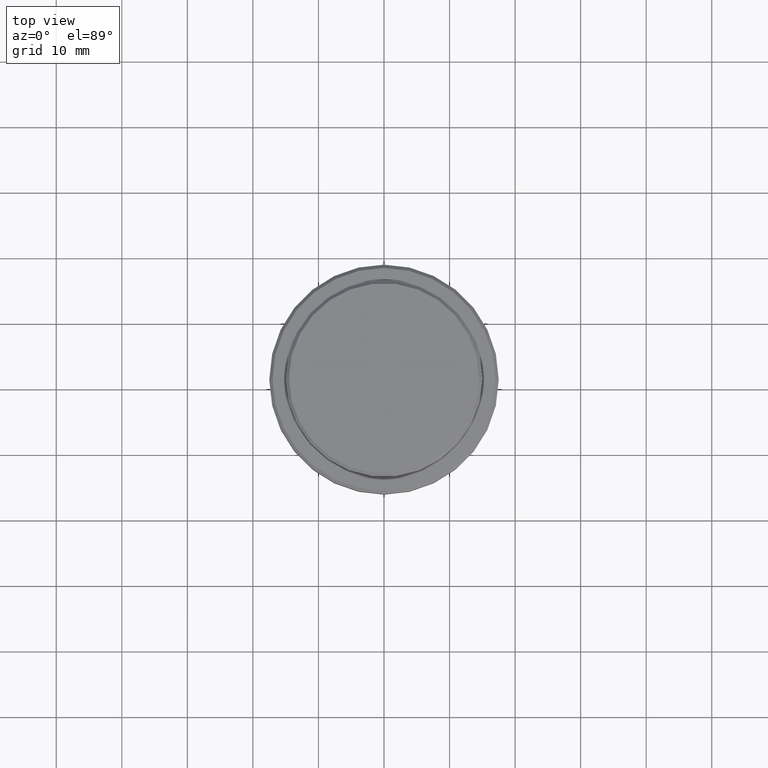
[diagram: clean part render]
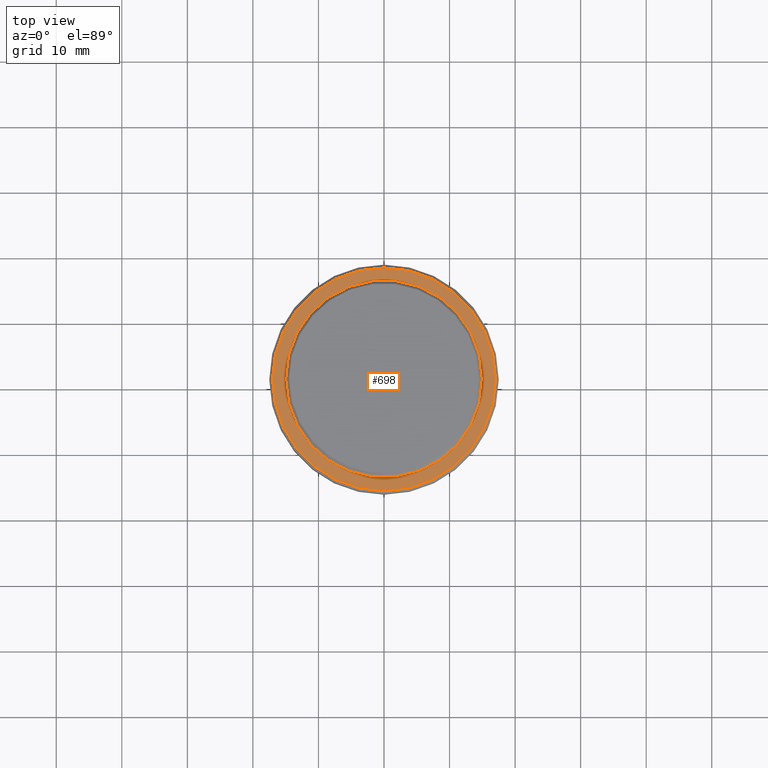
[diagram: same view with one face highlighted and labeled with its STEP entity id]
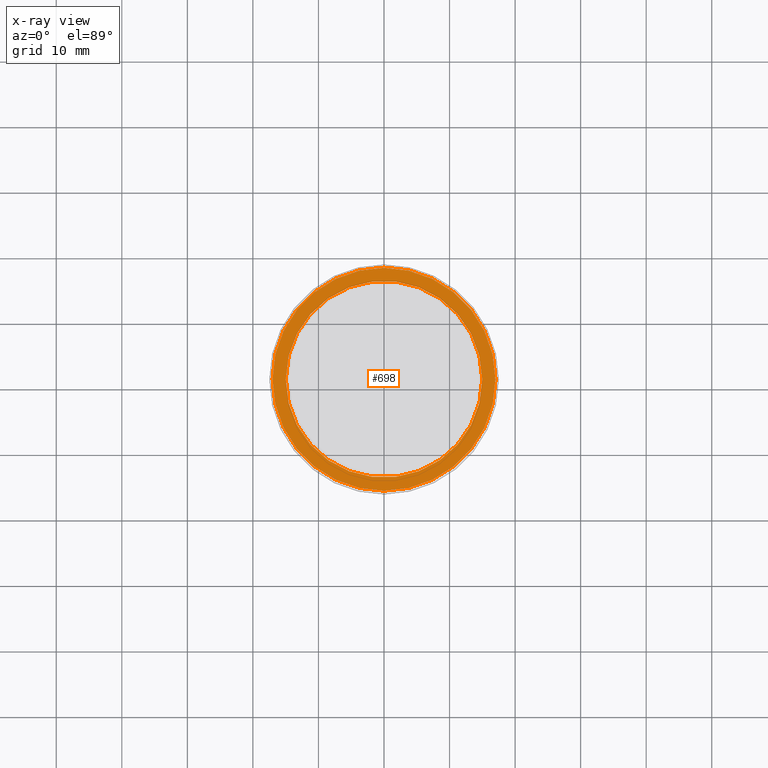
[diagram: x-ray of the same camera — body ghosted, the highlighted face saturated]
A machine part, top view. The second image highlights one B-rep face of the part: STEP entity #698.
The next image is the same camera in x-ray: the body ghosted, the highlighted face saturated — about 0% of this face is hidden behind the body in this view.
In plain terms, the highlighted planar face has unit normal (0, -0, 1).
Its self-contained STEP definition (entity closure, byte-faithful):
#77 = CARTESIAN_POINT ( 'NONE',  ( 0.000000000000000000, 0.000000000000000000, -9.000000000000000000 ) ) ;
#110 = DIRECTION ( 'NONE',  ( 1.000000000000000000, 0.000000000000000000, 0.000000000000000000 ) ) ;
#178 = ORIENTED_EDGE ( 'NONE', *, *, #632, .T. ) ;
#200 = EDGE_CURVE ( 'NONE', #1201, #1207, #1104, .T. ) ;
#204 = DIRECTION ( 'NONE',  ( 1.000000000000000000, 0.000000000000000000, 0.000000000000000000 ) ) ;
#208 = CARTESIAN_POINT ( 'NONE',  ( 16.99999999999997513, 2.112515728529182883E-15, -9.000000000000000000 ) ) ;
#218 = ORIENTED_EDGE ( 'NONE', *, *, #200, .T. ) ;
#232 = DIRECTION ( 'NONE',  ( 0.000000000000000000, 0.000000000000000000, -1.000000000000000000 ) ) ;
#264 = AXIS2_PLACEMENT_3D ( 'NONE', #77, #953, #204 ) ;
#267 = ORIENTED_EDGE ( 'NONE', *, *, #1126, .T. ) ;
#314 = CIRCLE ( 'NONE', #848, 14.99999999999999289 ) ;
#324 = EDGE_LOOP ( 'NONE', ( #267, #218 ) ) ;
#326 = DIRECTION ( 'NONE',  ( -0.000000000000000000, -0.000000000000000000, 1.000000000000000000 ) ) ;
#446 = EDGE_CURVE ( 'NONE', #1185, #923, #314, .T. ) ;
#537 = DIRECTION ( 'NONE',  ( 1.000000000000000000, 0.000000000000000000, 0.000000000000000000 ) ) ;
#596 = CARTESIAN_POINT ( 'NONE',  ( -14.99999999999999289, 1.836970198721028800E-15, -9.000000000000000000 ) ) ;
#628 = CARTESIAN_POINT ( 'NONE',  ( 0.000000000000000000, 0.000000000000000000, -9.000000000000000000 ) ) ;
#632 = EDGE_CURVE ( 'NONE', #923, #1185, #1029, .T. ) ;
#635 = FACE_BOUND ( 'NONE', #1274, .T. ) ;
#640 = AXIS2_PLACEMENT_3D ( 'NONE', #707, #232, #537 ) ;
#652 = CARTESIAN_POINT ( 'NONE',  ( -16.99999999999997513, 0.000000000000000000, -9.000000000000000000 ) ) ;
#698 = ADVANCED_FACE ( 'NONE', ( #977, #635 ), #1303, .T. ) ;
#707 = CARTESIAN_POINT ( 'NONE',  ( 0.000000000000000000, 0.000000000000000000, -9.000000000000000000 ) ) ;
#714 = AXIS2_PLACEMENT_3D ( 'NONE', #628, #326, #979 ) ;
#736 = ORIENTED_EDGE ( 'NONE', *, *, #446, .T. ) ;
#848 = AXIS2_PLACEMENT_3D ( 'NONE', #1264, #1153, #1187 ) ;
#860 = CARTESIAN_POINT ( 'NONE',  ( 14.99999999999999289, 0.000000000000000000, -9.000000000000000000 ) ) ;
#923 = VERTEX_POINT ( 'NONE', #596 ) ;
#944 = CIRCLE ( 'NONE', #714, 16.99999999999997513 ) ;
#953 = DIRECTION ( 'NONE',  ( -0.000000000000000000, -0.000000000000000000, 1.000000000000000000 ) ) ;
#977 = FACE_OUTER_BOUND ( 'NONE', #324, .T. ) ;
#979 = DIRECTION ( 'NONE',  ( 1.000000000000000000, 0.000000000000000000, 0.000000000000000000 ) ) ;
#1029 = CIRCLE ( 'NONE', #640, 14.99999999999999289 ) ;
#1092 = CARTESIAN_POINT ( 'NONE',  ( 0.000000000000000000, 14.49999999999999467, -9.000000000000000000 ) ) ;
#1104 = CIRCLE ( 'NONE', #264, 16.99999999999997513 ) ;
#1126 = EDGE_CURVE ( 'NONE', #1207, #1201, #944, .T. ) ;
#1144 = AXIS2_PLACEMENT_3D ( 'NONE', #1092, #1322, #110 ) ;
#1153 = DIRECTION ( 'NONE',  ( 0.000000000000000000, 0.000000000000000000, -1.000000000000000000 ) ) ;
#1185 = VERTEX_POINT ( 'NONE', #860 ) ;
#1187 = DIRECTION ( 'NONE',  ( 1.000000000000000000, 0.000000000000000000, 0.000000000000000000 ) ) ;
#1201 = VERTEX_POINT ( 'NONE', #208 ) ;
#1207 = VERTEX_POINT ( 'NONE', #652 ) ;
#1264 = CARTESIAN_POINT ( 'NONE',  ( 0.000000000000000000, 0.000000000000000000, -9.000000000000000000 ) ) ;
#1274 = EDGE_LOOP ( 'NONE', ( #736, #178 ) ) ;
#1303 = PLANE ( 'NONE',  #1144 ) ;
#1322 = DIRECTION ( 'NONE',  ( 0.000000000000000000, -0.000000000000000000, 1.000000000000000000 ) ) ;